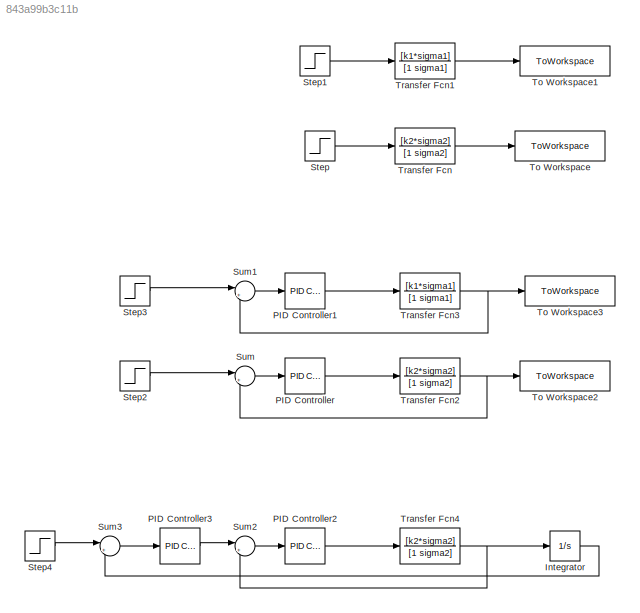
MODEL slx_843a99b3c11b
KIND model
CONFIG AbsTol = auto
CONFIG EnableMultiTasking = off
CONFIG FixedStep = auto
CONFIG MaxStep = auto
CONFIG MinStep = auto
CONFIG RelTol = 1e-3
CONFIG SampleTimeConstraint = Unconstrained
CONFIG Solver = VariableStepAuto
CONFIG SolverName = VariableStepAuto
CONFIG StartTime = 0.0
CONFIG StopTime = 4.0
BLOCK [Integrator] Integrator
  Ports = [1, 1]
BLOCK [Reference] PID Controller  REF=simulink/Continuous/PID Controller
  Ports = [1, 1]
  SourceBlock = simulink/Continuous/PID Controller
  SourceProductBaseCode = SL
  SourceType = PID 1dof
BLOCK [Reference] PID Controller1  REF=simulink/Continuous/PID Controller
  Ports = [1, 1]
  SourceBlock = simulink/Continuous/PID Controller
  SourceProductBaseCode = SL
  SourceType = PID 1dof
BLOCK [Reference] PID Controller2  REF=simulink/Continuous/PID Controller
  Ports = [1, 1]
  SourceBlock = simulink/Continuous/PID Controller
  SourceProductBaseCode = SL
  SourceType = PID 1dof
BLOCK [Reference] PID Controller3  REF=simulink/Continuous/PID Controller
  Ports = [1, 1]
  SourceBlock = simulink/Continuous/PID Controller
  SourceProductBaseCode = SL
  SourceType = PID 1dof
BLOCK [Step] Step
  After = 2
  SampleTime = 0
BLOCK [Step] Step1
  After = 2
  SampleTime = 0
BLOCK [Step] Step2
  SampleTime = 0
BLOCK [Step] Step3
  SampleTime = 0
BLOCK [Step] Step4
  SampleTime = 0
BLOCK [Sum] Sum
  Inputs = |+-
  Ports = [2, 1]
BLOCK [Sum] Sum1
  Inputs = |+-
  Ports = [2, 1]
BLOCK [Sum] Sum2
  Inputs = |+-
  Ports = [2, 1]
BLOCK [Sum] Sum3
  Inputs = |++
  Ports = [2, 1]
BLOCK [ToWorkspace] To Workspace
  FixptAsFi = on
  MaxDataPoints = inf
  Ports = [1]
  SampleTime = -1
  SaveFormat = Timeseries
  VariableName = simout2
BLOCK [ToWorkspace] To Workspace1
  FixptAsFi = on
  MaxDataPoints = inf
  Ports = [1]
  SampleTime = -1
  SaveFormat = Timeseries
  VariableName = simout1
BLOCK [ToWorkspace] To Workspace2
  FixptAsFi = on
  MaxDataPoints = inf
  Ports = [1]
  SampleTime = -1
  SaveFormat = Timeseries
  VariableName = simout
BLOCK [ToWorkspace] To Workspace3
  FixptAsFi = on
  MaxDataPoints = inf
  Ports = [1]
  SampleTime = -1
  SaveFormat = Timeseries
  VariableName = simout3
BLOCK [TransferFcn] Transfer Fcn
  Denominator = [1 sigma2]
  Numerator = [k2*sigma2]
BLOCK [TransferFcn] Transfer Fcn1
  Denominator = [1 sigma1]
  Numerator = [k1*sigma1]
BLOCK [TransferFcn] Transfer Fcn2
  Denominator = [1 sigma2]
  Numerator = [k2*sigma2]
BLOCK [TransferFcn] Transfer Fcn3
  Denominator = [1 sigma1]
  Numerator = [k1*sigma1]
BLOCK [TransferFcn] Transfer Fcn4
  Denominator = [1 sigma2]
  Numerator = [k2*sigma2]
LINE Integrator:1 -> Sum3:2
LINE PID Controller1:1 -> Transfer Fcn3:1
LINE PID Controller2:1 -> Transfer Fcn4:1
LINE PID Controller3:1 -> Sum2:1
LINE PID Controller:1 -> Transfer Fcn2:1
LINE Step1:1 -> Transfer Fcn1:1
LINE Step2:1 -> Sum:1
LINE Step3:1 -> Sum1:1
LINE Step4:1 -> Sum3:1
LINE Step:1 -> Transfer Fcn:1
LINE Sum1:1 -> PID Controller1:1
LINE Sum2:1 -> PID Controller2:1
LINE Sum3:1 -> PID Controller3:1
LINE Sum:1 -> PID Controller:1
LINE Transfer Fcn1:1 -> To Workspace1:1
NET Transfer Fcn2:1 -> Sum:2, To Workspace2:1
NET Transfer Fcn3:1 -> Sum1:2, To Workspace3:1
NET Transfer Fcn4:1 -> Integrator:1, Sum2:2
LINE Transfer Fcn:1 -> To Workspace:1
note: NET lines group one-source signal fan-out (src -> all destinations, sorted); 1:1 wires keep LINE
